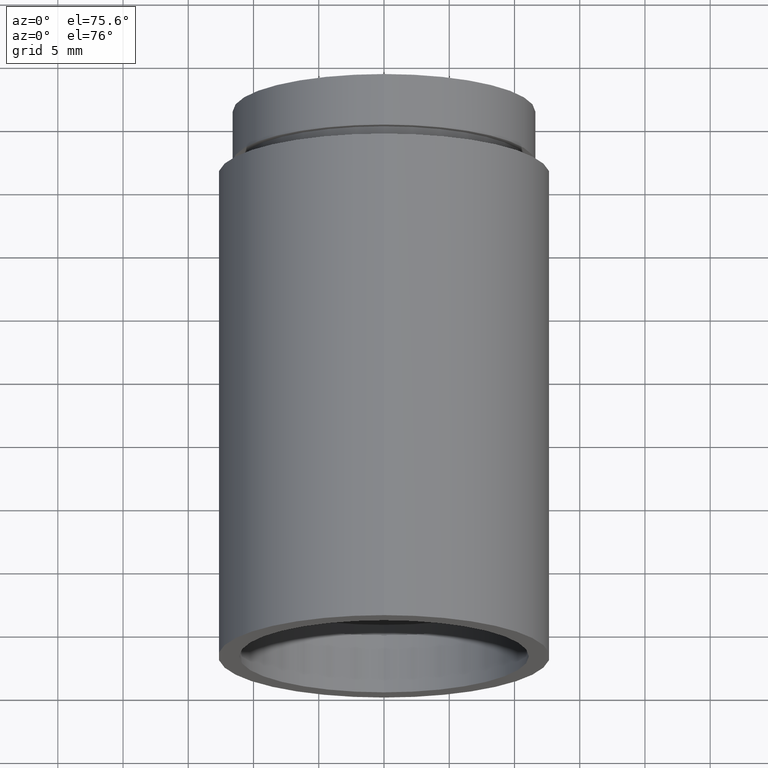
[diagram: clean part render]
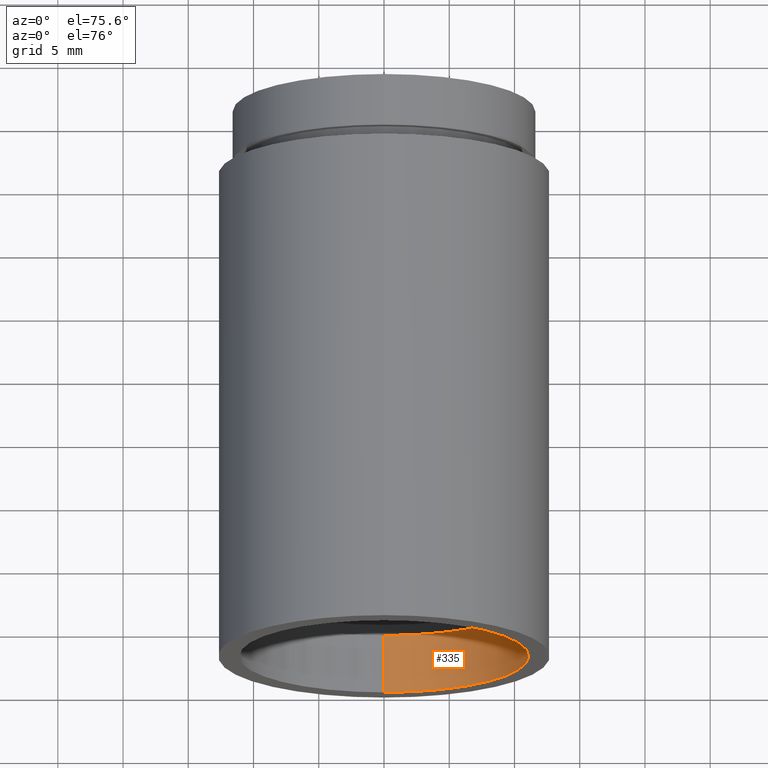
[diagram: same view with one face highlighted and labeled with its STEP entity id]
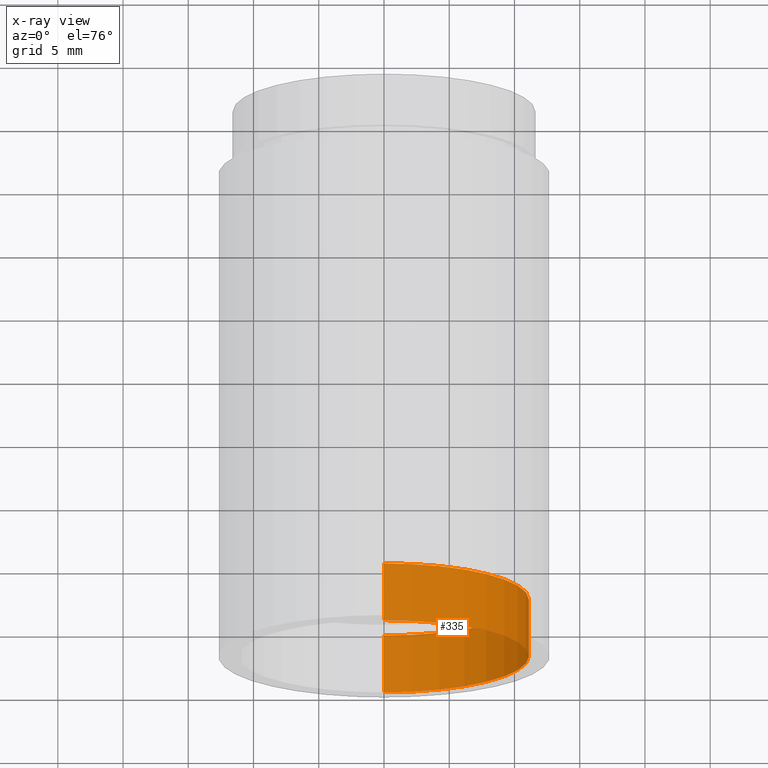
[diagram: x-ray of the same camera — body ghosted, the highlighted face saturated]
A machine part, auxiliary view. The second image highlights one B-rep face of the part: STEP entity #335.
The next image is the same camera in x-ray: the body ghosted, the highlighted face saturated — about 0% of this face is hidden behind the body in this view.
In plain terms, the highlighted cylindrical surface (partial cylindrical patch) has radius 11.1 mm, axis along (-0, 1, -0).
Its self-contained STEP definition (entity closure, byte-faithful):
#61 = EDGE_CURVE ( 'NONE', #84, #149, #491, .T. ) ;
#68 = VERTEX_POINT ( 'NONE', #202 ) ;
#75 = DIRECTION ( 'NONE',  ( 0.0000000000000000000, 0.0000000000000000000, 1.000000000000000000 ) ) ;
#84 = VERTEX_POINT ( 'NONE', #301 ) ;
#112 = EDGE_CURVE ( 'NONE', #84, #68, #165, .T. ) ;
#119 = AXIS2_PLACEMENT_3D ( 'NONE', #545, #269, #75 ) ;
#147 = CARTESIAN_POINT ( 'NONE',  ( 0.0000000000000000000, -2.775557561562891400E-014, 0.0000000000000000000 ) ) ;
#149 = VERTEX_POINT ( 'NONE', #575 ) ;
#165 = LINE ( 'NONE', #431, #568 ) ;
#173 = CARTESIAN_POINT ( 'NONE',  ( 1.359357947053564500E-015, 161.3761669434274500, -11.10000000000002100 ) ) ;
#191 = DIRECTION ( 'NONE',  ( -0.0000000000000000000, 1.000000000000000000, -0.0000000000000000000 ) ) ;
#202 = CARTESIAN_POINT ( 'NONE',  ( 0.0000000000000000000, 4.499999999999976000, 11.10000000000001900 ) ) ;
#218 = CARTESIAN_POINT ( 'NONE',  ( 0.0000000000000000000, 161.3761669434274500, 0.0000000000000000000 ) ) ;
#236 = ORIENTED_EDGE ( 'NONE', *, *, #61, .F. ) ;
#238 = VECTOR ( 'NONE', #454, 1000.000000000000000 ) ;
#243 = ORIENTED_EDGE ( 'NONE', *, *, #455, .T. ) ;
#248 = CYLINDRICAL_SURFACE ( 'NONE', #392, 11.10000000000002100 ) ;
#260 = AXIS2_PLACEMENT_3D ( 'NONE', #147, #191, #293 ) ;
#265 = DIRECTION ( 'NONE',  ( -0.0000000000000000000, 1.000000000000000000, -0.0000000000000000000 ) ) ;
#269 = DIRECTION ( 'NONE',  ( -0.0000000000000000000, 1.000000000000000000, -0.0000000000000000000 ) ) ;
#293 = DIRECTION ( 'NONE',  ( 0.0000000000000000000, 0.0000000000000000000, 1.000000000000000000 ) ) ;
#301 = CARTESIAN_POINT ( 'NONE',  ( 0.0000000000000000000, -2.775557561562891400E-014, 11.10000000000002300 ) ) ;
#307 = EDGE_LOOP ( 'NONE', ( #595, #236, #519, #243 ) ) ;
#315 = LINE ( 'NONE', #173, #238 ) ;
#335 = ADVANCED_FACE ( 'NONE', ( #386 ), #248, .F. ) ;
#386 = FACE_OUTER_BOUND ( 'NONE', #307, .T. ) ;
#390 = CARTESIAN_POINT ( 'NONE',  ( 1.359357947053564500E-015, 4.499999999999976000, -11.10000000000001900 ) ) ;
#391 = DIRECTION ( 'NONE',  ( -0.0000000000000000000, 1.000000000000000000, -0.0000000000000000000 ) ) ;
#392 = AXIS2_PLACEMENT_3D ( 'NONE', #218, #265, #492 ) ;
#406 = EDGE_CURVE ( 'NONE', #149, #623, #315, .T. ) ;
#431 = CARTESIAN_POINT ( 'NONE',  ( 0.0000000000000000000, 161.3761669434274500, 11.10000000000002100 ) ) ;
#454 = DIRECTION ( 'NONE',  ( -0.0000000000000000000, 1.000000000000000000, -0.0000000000000000000 ) ) ;
#455 = EDGE_CURVE ( 'NONE', #68, #623, #543, .T. ) ;
#491 = CIRCLE ( 'NONE', #260, 11.10000000000002300 ) ;
#492 = DIRECTION ( 'NONE',  ( 0.0000000000000000000, 0.0000000000000000000, 1.000000000000000000 ) ) ;
#519 = ORIENTED_EDGE ( 'NONE', *, *, #112, .T. ) ;
#543 = CIRCLE ( 'NONE', #119, 11.10000000000001900 ) ;
#545 = CARTESIAN_POINT ( 'NONE',  ( 0.0000000000000000000, 4.499999999999976000, 0.0000000000000000000 ) ) ;
#568 = VECTOR ( 'NONE', #391, 1000.000000000000000 ) ;
#575 = CARTESIAN_POINT ( 'NONE',  ( 1.359357947053564900E-015, -2.775557561562891400E-014, -11.10000000000002300 ) ) ;
#595 = ORIENTED_EDGE ( 'NONE', *, *, #406, .F. ) ;
#623 = VERTEX_POINT ( 'NONE', #390 ) ;